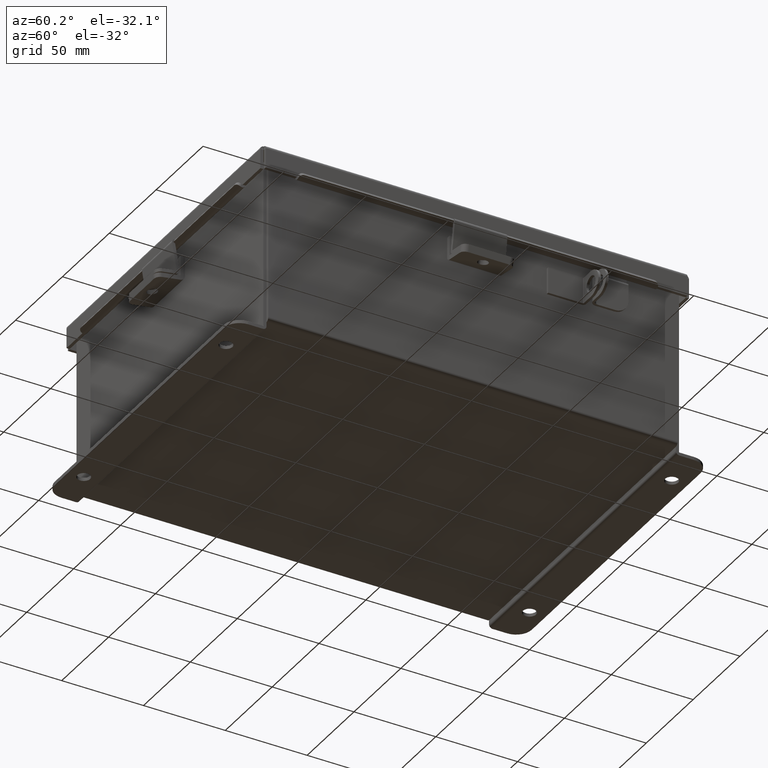
[diagram: clean part render]
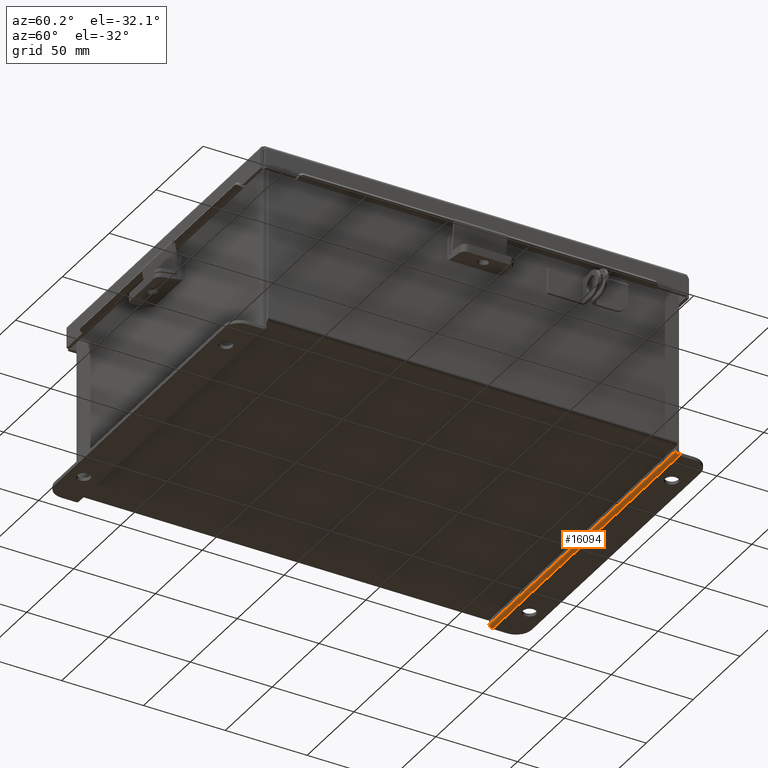
[diagram: same view with one face highlighted and labeled with its STEP entity id]
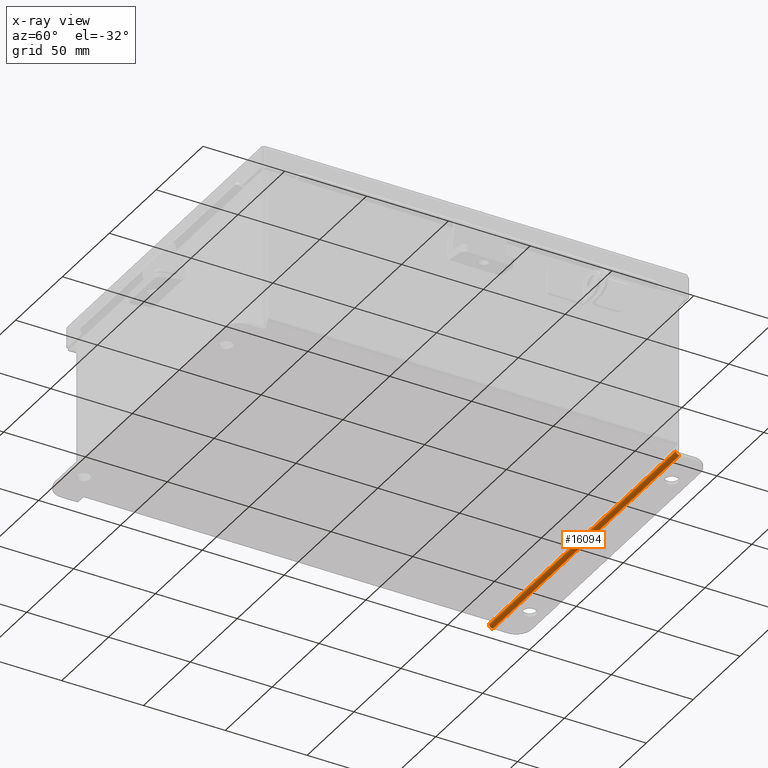
[diagram: x-ray of the same camera — body ghosted, the highlighted face saturated]
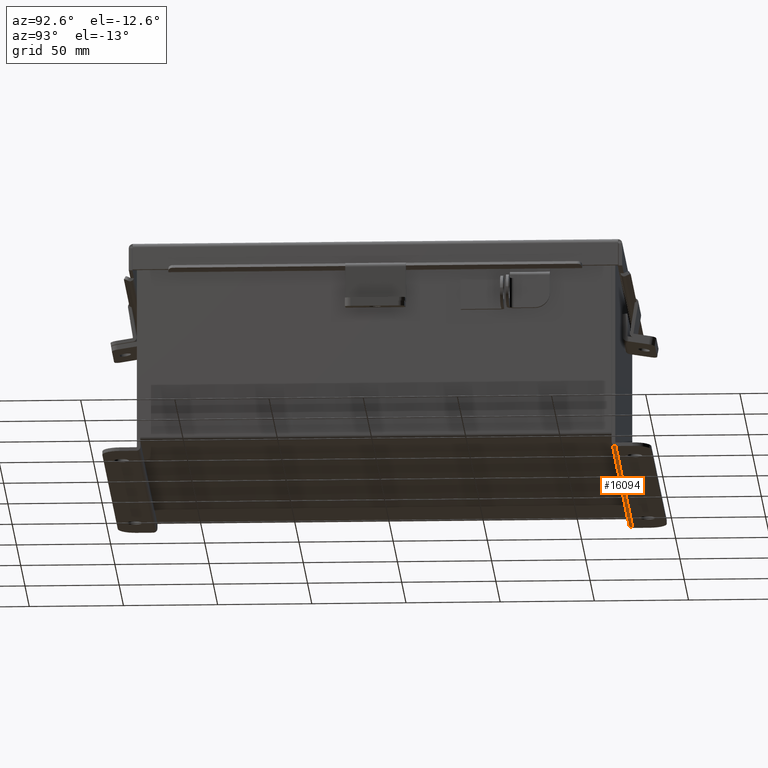
[diagram: same view with one face highlighted and labeled with its STEP entity id]
A machine part, auxiliary view. The second image highlights one B-rep face of the part: STEP entity #16094.
The next image is the same camera in x-ray: the body ghosted, the highlighted face saturated — about 0% of this face is hidden behind the body in this view.
A second angle (auxiliary view) of the same face is appended — the face is thin or edge-on in the first view.
In plain terms, the highlighted cylindrical surface (edge-blend (fillet) strip) has radius 2.2276 mm, axis along (-1, 0, 0).
Its self-contained STEP definition (entity closure, byte-faithful):
#173 = CARTESIAN_POINT ( 'NONE',  ( -3.925299999999999600, 0.01300000000000010700, -2.099300000000000400 ) ) ;
#786 = VERTEX_POINT ( 'NONE', #9388 ) ;
#2815 = DIRECTION ( 'NONE',  ( -1.000000000000000000, 0.0000000000000000000, 0.0000000000000000000 ) ) ;
#3236 = VERTEX_POINT ( 'NONE', #3971 ) ;
#3971 = CARTESIAN_POINT ( 'NONE',  ( -3.925299999999999600, 0.01300000000000010700, -2.187000000000000300 ) ) ;
#5051 = DIRECTION ( 'NONE',  ( 1.000000000000000000, -0.0000000000000000000, -0.0000000000000000000 ) ) ;
#5138 = DIRECTION ( 'NONE',  ( 1.000000000000000000, -0.0000000000000000000, -0.0000000000000000000 ) ) ;
#5461 = DIRECTION ( 'NONE',  ( 0.0000000000000000000, -3.334014886794506100E-015, -1.000000000000000000 ) ) ;
#6201 = LINE ( 'NONE', #14111, #16185 ) ;
#6564 = VERTEX_POINT ( 'NONE', #16276 ) ;
#6693 = CARTESIAN_POINT ( 'NONE',  ( -3.925299999999999600, 0.01300000000000010700, -2.099300000000000400 ) ) ;
#6871 = CIRCLE ( 'NONE', #8241, 0.08770000000000000000 ) ;
#7105 = EDGE_LOOP ( 'NONE', ( #7253, #9110, #11621, #14544 ) ) ;
#7253 = ORIENTED_EDGE ( 'NONE', *, *, #14666, .F. ) ;
#7912 = DIRECTION ( 'NONE',  ( 1.000000000000000000, -0.0000000000000000000, -0.0000000000000000000 ) ) ;
#8021 = DIRECTION ( 'NONE',  ( 0.0000000000000000000, 0.0000000000000000000, 1.000000000000000000 ) ) ;
#8241 = AXIS2_PLACEMENT_3D ( 'NONE', #12723, #5138, #13960 ) ;
#9110 = ORIENTED_EDGE ( 'NONE', *, *, #14907, .F. ) ;
#9388 = CARTESIAN_POINT ( 'NONE',  ( 3.925299999999999600, -0.07470000000000015500, -2.099300000000000400 ) ) ;
#11549 = FACE_OUTER_BOUND ( 'NONE', #7105, .T. ) ;
#11621 = ORIENTED_EDGE ( 'NONE', *, *, #16239, .T. ) ;
#12331 = LINE ( 'NONE', #12635, #12732 ) ;
#12635 = CARTESIAN_POINT ( 'NONE',  ( -3.925299999999999600, -0.07470000000000015500, -2.099300000000000400 ) ) ;
#12723 = CARTESIAN_POINT ( 'NONE',  ( 3.925299999999999600, 0.01300000000000010700, -2.099300000000000400 ) ) ;
#12732 = VECTOR ( 'NONE', #5051, 39.37007874015748100 ) ;
#12758 = AXIS2_PLACEMENT_3D ( 'NONE', #6693, #15445, #8021 ) ;
#12925 = EDGE_CURVE ( 'NONE', #786, #6564, #6871, .T. ) ;
#13960 = DIRECTION ( 'NONE',  ( 0.0000000000000000000, -8.760915030992863200E-016, 1.000000000000000000 ) ) ;
#14070 = CYLINDRICAL_SURFACE ( 'NONE', #14530, 0.08770000000000000000 ) ;
#14111 = CARTESIAN_POINT ( 'NONE',  ( 3.925299999999999600, 0.01300000000000010700, -2.187000000000000300 ) ) ;
#14530 = AXIS2_PLACEMENT_3D ( 'NONE', #173, #2815, #5461 ) ;
#14544 = ORIENTED_EDGE ( 'NONE', *, *, #12925, .F. ) ;
#14666 = EDGE_CURVE ( 'NONE', #15193, #786, #12331, .T. ) ;
#14907 = EDGE_CURVE ( 'NONE', #3236, #15193, #16197, .T. ) ;
#15193 = VERTEX_POINT ( 'NONE', #15919 ) ;
#15445 = DIRECTION ( 'NONE',  ( -1.000000000000000000, 0.0000000000000000000, 0.0000000000000000000 ) ) ;
#15919 = CARTESIAN_POINT ( 'NONE',  ( -3.925299999999999600, -0.07470000000000015500, -2.099300000000000400 ) ) ;
#16094 = ADVANCED_FACE ( 'NONE', ( #11549 ), #14070, .T. ) ;
#16185 = VECTOR ( 'NONE', #7912, 39.37007874015748100 ) ;
#16197 = CIRCLE ( 'NONE', #12758, 0.08770000000000000000 ) ;
#16239 = EDGE_CURVE ( 'NONE', #3236, #6564, #6201, .T. ) ;
#16276 = CARTESIAN_POINT ( 'NONE',  ( 3.925299999999999600, 0.01299999999999901400, -2.187000000000000300 ) ) ;